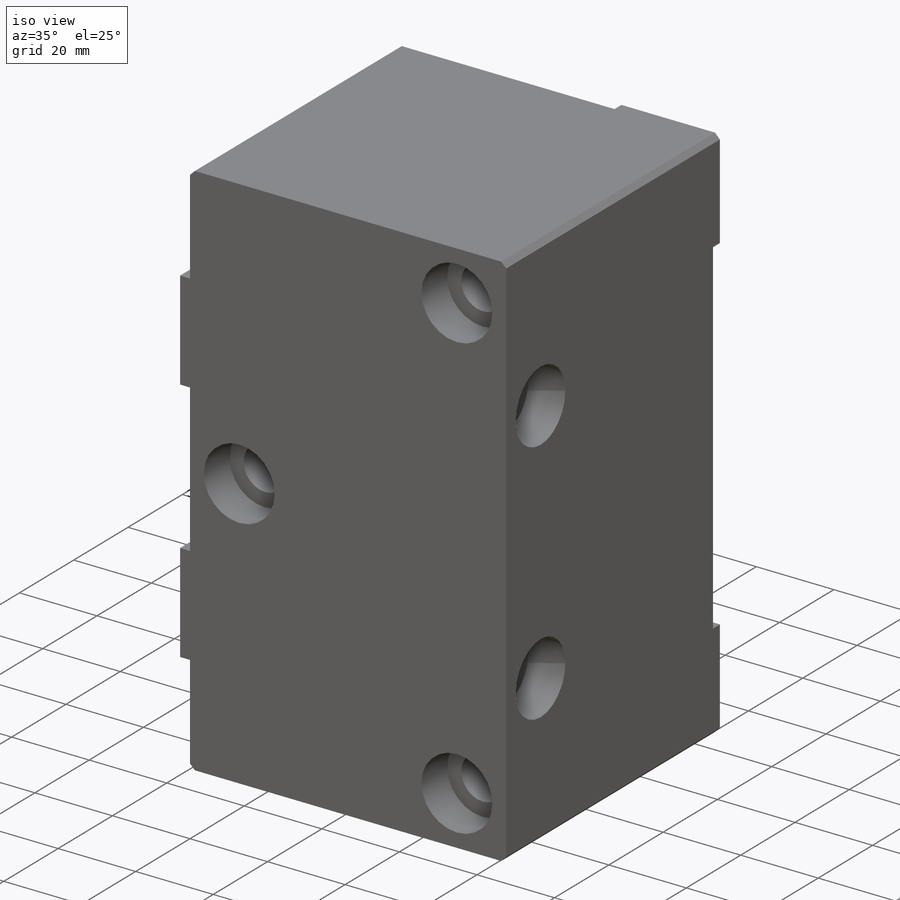
[diagram: iso view]
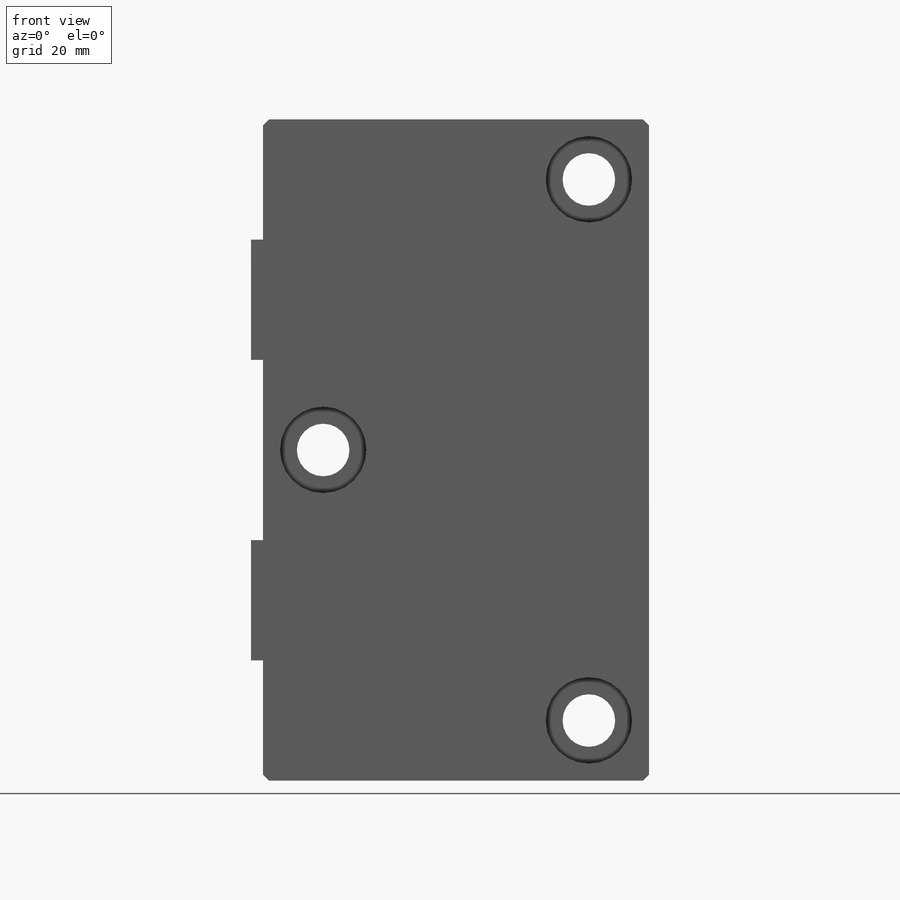
[diagram: front view]
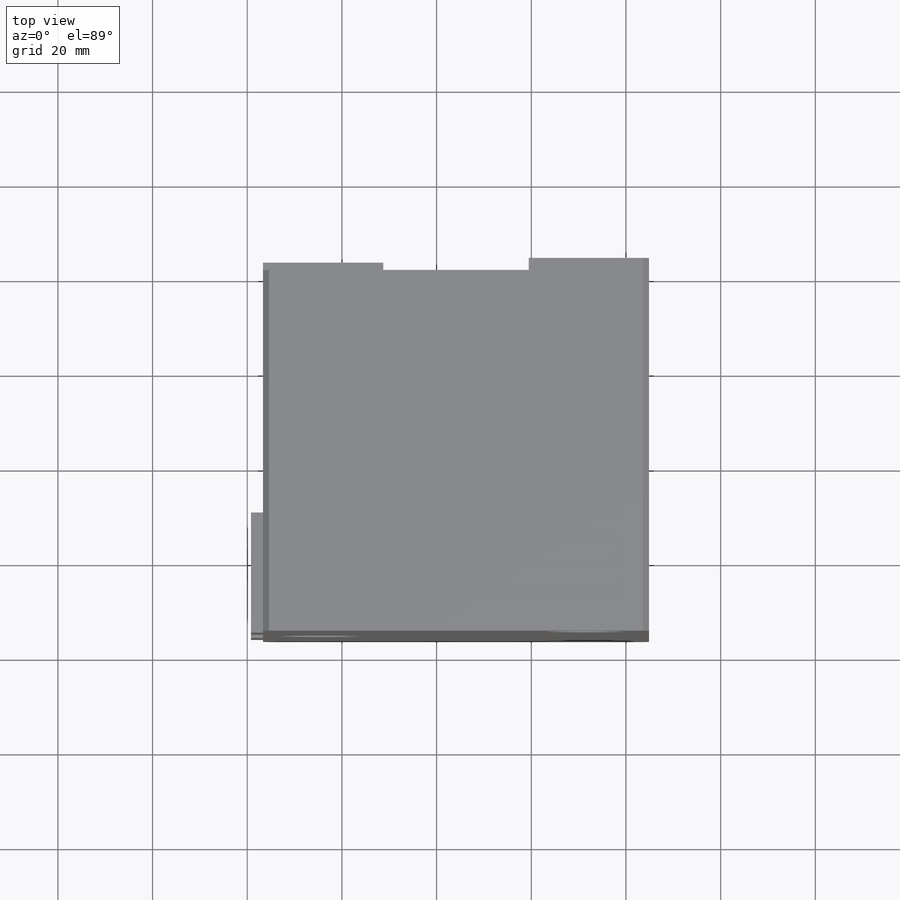
[diagram: top view]
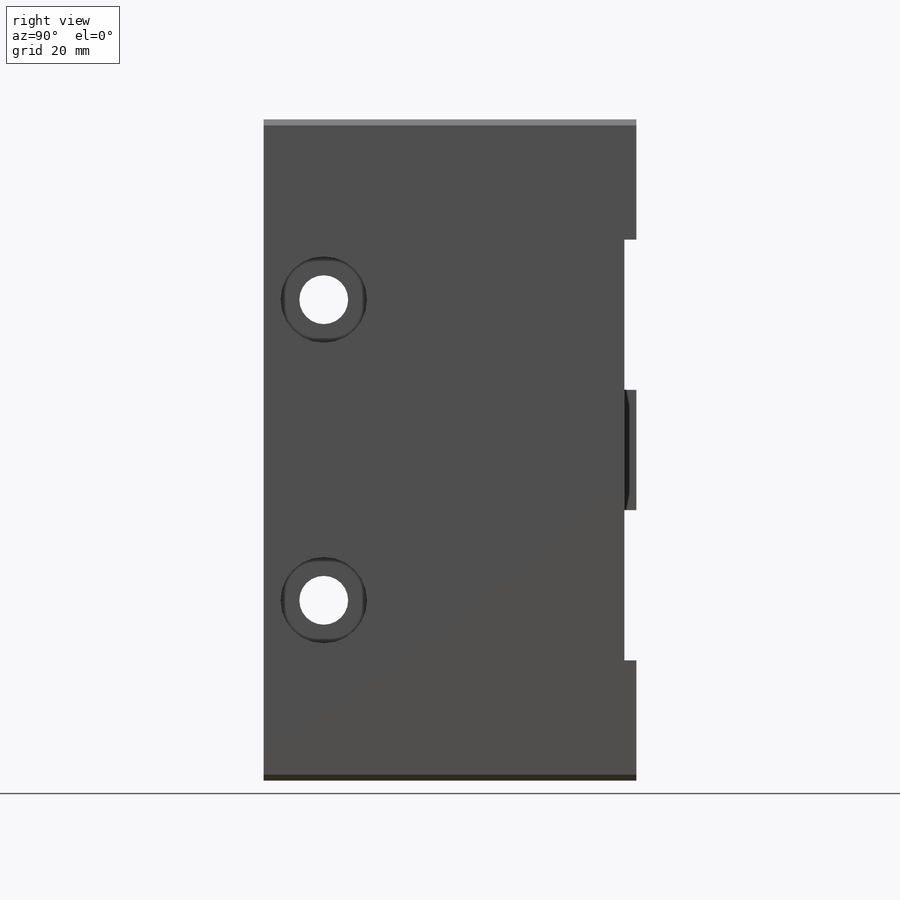
[diagram: right view]
SOLIDWORKS PART (.sldprt)
format: sldprt  version: not decoded by parser v0  size: 294,400 bytes
history: native  units: mm
features: sketch x7, extrude x3, hole x2, material x1, chamfer x1 (+16 scaffold rows collapsed)
feature tree (30):
  scaffold x16  (default folders/planes/origin — collapsed)
  material  "AISI 304"
  sketch  "Sketch1"  dims[D1=81.534mm D2=139.7mm]
  extrude  "Extrude1"  Depth=76.2mm
  sketch  "Sketch8"  dims[D1=25.4mm D2=25.4mm D3=57.15mm]
  extrude  "Extrude2"  Depth=2.54mm
  hole  "CBORE for 3/8 Socket Head Cap Screw1"  Diameter=11.0998mm Depth=78.740025mm
  sketch  "Sketch3"  dims[c1.D1=12.7mm c1.D2=~15.714534mm c2.D2=90.0deg c3.D2=12.7mm c3.D3=12.7mm c3.D4=12.7mm c3.D5=12.7mm c3.D1=12.7mm c4.D2=12.7mm c4.D3=12.7mm c4.D4=12.7mm c4.D5=69.85mm c4.D6=12.7mm]
  sketch  "Sketch2"  dims[hole-wizard template sketch: 41 standard entries collapsed; hole parameters kept: c12.Thru Hole Dia.=11.0998mm c12.Thru Hole Depth=~78.740025mm c12.C'Bore Dia.=18.2626mm c12.C'Bore Depth=9.525mm]
  sketch  "Sketch9"  dims[D1=25.4mm D2=25.4mm D3=25.4mm D4=25.4mm]
  extrude  "Extrude3"  Depth=2.54mm
  hole  "CBORE for 3/8 Socket Head Cap Screw3"  Diameter=10.3124mm Depth=84.074025mm
  sketch  "Sketch7"  dims[c1.D1=12.7mm c1.D2=12.7mm c1.D3=50.8mm c1.D4=31.75mm c2.D3=38.1mm c2.D2=38.1mm c2.D4=139.7mm c3.D4=~7.172667deg]
  sketch  "Sketch6"  dims[hole-wizard template sketch: 42 standard entries collapsed; hole parameters kept: c12.Thru Hole Depth=~84.074025mm c12.C'Bore Dia.=18.2626mm c12.C'Bore Depth=9.525mm]
  chamfer  "Chamfer1"  Distance=1.27mm Angle=45deg
decode coverage: 13 of 13 modeling features carry decoded parameters
note: ~ marks probable driven/reference dimensions
note: suppression state not decoded; provenance and decode notes live in map.json
